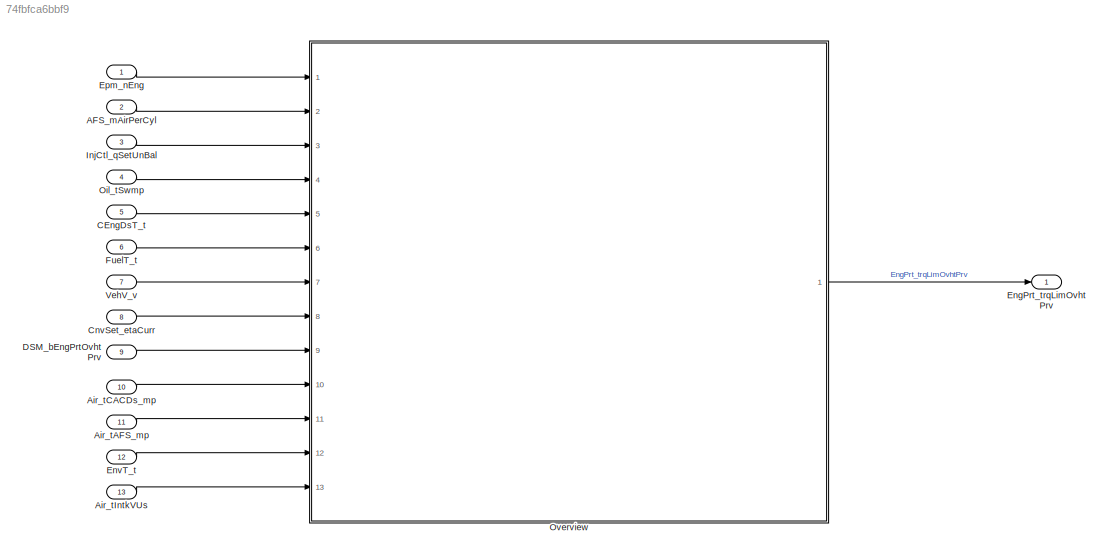
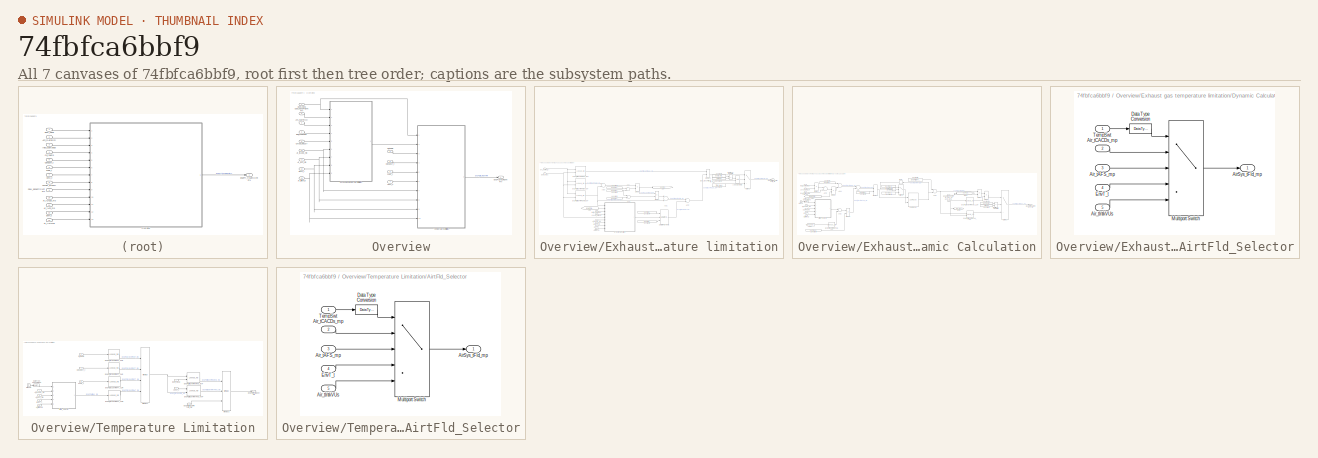
[diagram: thumbnail index - all 7 canvases of the model, root first then tree order]
MODEL slx_74fbfca6bbf9
KIND model
CONFIG AbsTol = auto
CONFIG EnableMultiTasking = off
CONFIG FixedStep = 0.001
CONFIG MaxStep = auto
CONFIG MinStep = auto
CONFIG RelTol = 1e-3
CONFIG SampleTimeConstraint = Unconstrained
CONFIG Solver = FixedStepDiscrete
CONFIG SolverName = FixedStepDiscrete
CONFIG StartTime = 0.0
CONFIG StopTime = Inf
BLOCK [Inport] AFS_mAirPerCyl
  Description = Air mass per cylinder
  IconDisplay = Port number
  OutDataTypeStr = Mass_mg
  OutMax = 16383
  OutMin = 0
  Port = 2
  PortDimensions = [1 1]
  Unit = mg/hub
BLOCK [Inport] Air_tAFS_mp
  Description = Induction air temperature at the HFM
  IconDisplay = Port number
  OutDataTypeStr = Temp_C
  OutMax = 200
  OutMin = -200
  Port = 11
  PortDimensions = [1 1]
  Unit = deg
BLOCK [Inport] Air_tCACDs_mp
  Description = Charge-air temperature downstream from charge-air cooler
  IconDisplay = Port number
  OutDataTypeStr = Temp_C
  OutMax = 200
  OutMin = -200
  Port = 10
  PortDimensions = [1 1]
  Unit = deg
BLOCK [Inport] Air_tIntkVUs
  Description = Intake air temperature upstream of the inlet valve
  IconDisplay = Port number
  OutDataTypeStr = Temp_C
  OutMax = 200
  OutMin = -200
  Port = 13
  PortDimensions = [1 1]
  Unit = deg
BLOCK [Inport] CEngDsT_t
  Description = engine coolant temperature after filter
  IconDisplay = Port number
  OutDataTypeStr = Temp_C
  OutMax = 200
  OutMin = -200
  Port = 5
  PortDimensions = [1 1]
  Unit = deg
BLOCK [Inport] CnvSet_etaCurr
  Description = Current conversion efficiency
  IconDisplay = Port number
  OutDataTypeStr = Effcy
  OutMax = 100
  OutMin = -100
  Port = 8
  PortDimensions = [1 1]
  Unit = Nm/(mg/hub)
BLOCK [Inport] DSM_bEngPrtOvhtPrv
  Description = Status of FId_EngPrtOvhtPrv
  IconDisplay = Port number
  OutDataTypeStr = boolean
  OutMax = 1
  OutMin = 0
  Port = 9
  PortDimensions = [1 1]
BLOCK [Outport] EngPrt_trqLimOvhtPrv
  IconDisplay = Port number
BLOCK [Inport] EnvT_t
  Description = Environmental temperature
  IconDisplay = Port number
  OutDataTypeStr = Temp_C
  OutMax = 200
  OutMin = -200
  Port = 12
  PortDimensions = [1 1]
  Unit = deg
BLOCK [Inport] Epm_nEng
  Description = Engine speed
  IconDisplay = Port number
  OutDataTypeStr = ERPM
  OutMax = 6000
  OutMin = 0
  PortDimensions = [1 1]
  Unit = rpm
BLOCK [Inport] FuelT_t
  Description = Temperature of fuel
  IconDisplay = Port number
  OutDataTypeStr = Temp_C
  OutMax = 150
  OutMin = -50
  Port = 6
  PortDimensions = [1 1]
  Unit = deg
BLOCK [Inport] InjCtl_qSetUnBal
  Description = Current injection quantity
  IconDisplay = Port number
  OutDataTypeStr = InjMass
  OutMax = 319
  OutMin = -319
  Port = 3
  PortDimensions = [1 1]
  Unit = mg/hub
BLOCK [Inport] Oil_tSwmp
  Description = Oil temperature in oil sump
  IconDisplay = Port number
  OutDataTypeStr = Temp_C
  OutMax = 200
  OutMin = -50
  Port = 4
  PortDimensions = [1 1]
  Unit = deg
BLOCK [SubSystem] Overview
  Ports = [13, 1]
  RequestExecContextInheritance = off
BLOCK [Inport] Overview/AFS_mAirPerCyl
  IconDisplay = Port number
  Port = 2
  Tag = mg/hub
BLOCK [Inport] Overview/Air_tAFS_mp
  IconDisplay = Port number
  Port = 11
  Tag = deg
BLOCK [Inport] Overview/Air_tCACDs_mp
  IconDisplay = Port number
  Port = 10
  Tag = deg
BLOCK [Inport] Overview/Air_tIntkVUs
  IconDisplay = Port number
  Port = 13
  Tag = deg
BLOCK [Inport] Overview/CEngDsT_t
  IconDisplay = Port number
  Port = 5
  Tag = deg
BLOCK [Inport] Overview/CnvSet_etaCurr
  IconDisplay = Port number
  Port = 8
  Tag = Nm/(mg/hub)
BLOCK [Inport] Overview/DSM_bEngPrtOvhtPrv
  IconDisplay = Port number
  Port = 9
BLOCK [Outport] Overview/EngPrt_trqLimOvhtPrv
  IconDisplay = Port number
  Tag = Nm
BLOCK [Inport] Overview/EnvT_t
  IconDisplay = Port number
  Port = 12
  Tag = deg
BLOCK [Inport] Overview/Epm_nEng
  IconDisplay = Port number
  Tag = rpm
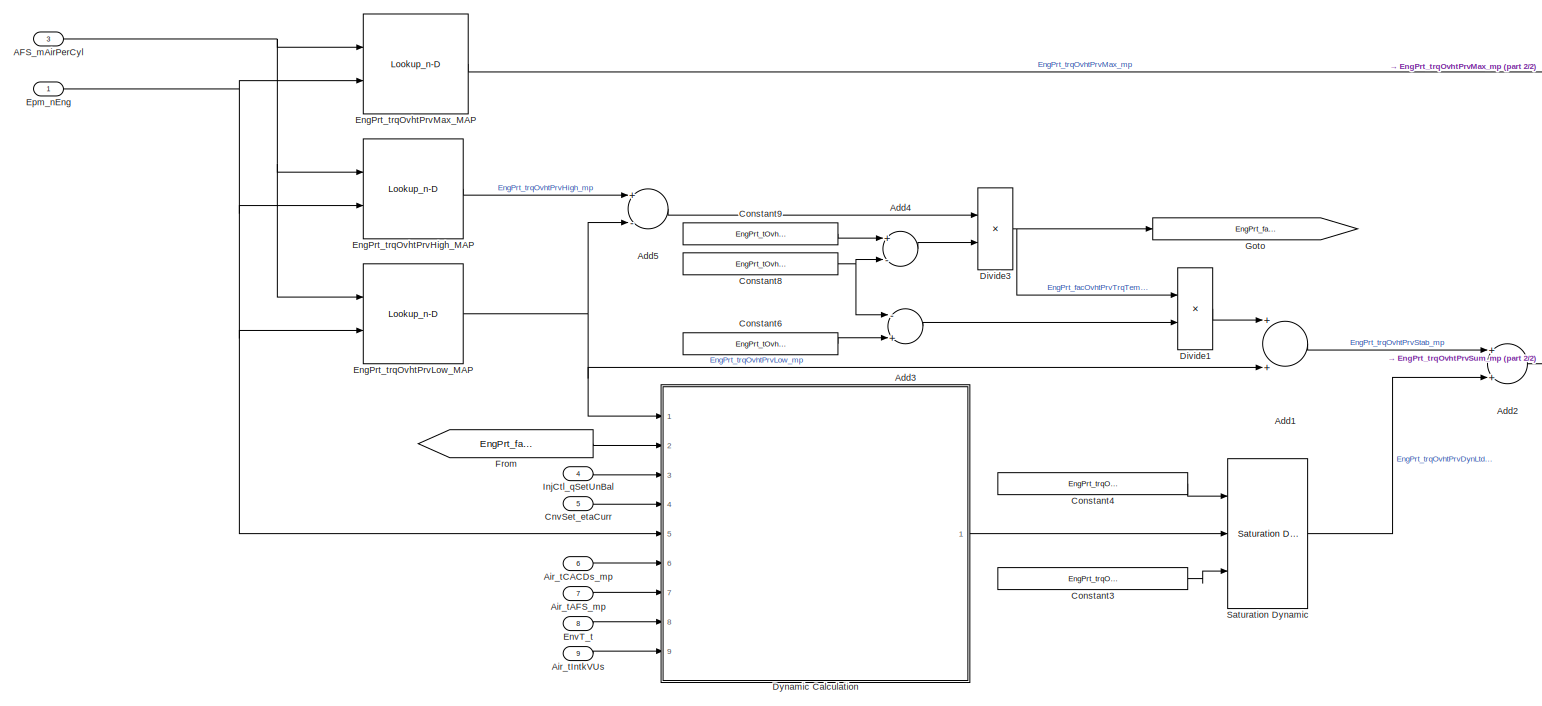
[diagram: Overview/Exhaust gas temperature limitation - part 1/2, left side, full height]
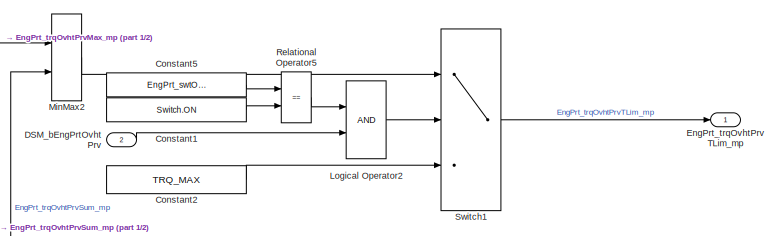
[diagram: Overview/Exhaust gas temperature limitation - part 2/2, top right region]
BLOCK [SubSystem] Overview/Exhaust gas temperature limitation
  Ports = [9, 1]
  RequestExecContextInheritance = off
BLOCK [Inport] Overview/Exhaust gas temperature limitation/AFS_mAirPerCyl
  IconDisplay = Port number
  Port = 3
  Tag = mg/hub
BLOCK [Sum] Overview/Exhaust gas temperature limitation/Add1
  OutDataTypeStr = Inherit: Inherit via internal rule
  Ports = [2, 1]
BLOCK [Sum] Overview/Exhaust gas temperature limitation/Add2
  OutDataTypeStr = Inherit: Inherit via internal rule
  Ports = [2, 1]
BLOCK [Sum] Overview/Exhaust gas temperature limitation/Add3
  Inputs = -+
  OutDataTypeStr = Inherit: Inherit via back propagation
  Ports = [2, 1]
  RndMeth = Round
BLOCK [Sum] Overview/Exhaust gas temperature limitation/Add4
  Inputs = +-
  OutDataTypeStr = Inherit: Inherit via back propagation
  Ports = [2, 1]
  RndMeth = Round
BLOCK [Sum] Overview/Exhaust gas temperature limitation/Add5
  Inputs = +-
  OutDataTypeStr = Inherit: Inherit via internal rule
  Ports = [2, 1]
BLOCK [Inport] Overview/Exhaust gas temperature limitation/Air_tAFS_mp
  IconDisplay = Port number
  Port = 7
  Tag = deg
BLOCK [Inport] Overview/Exhaust gas temperature limitation/Air_tCACDs_mp
  IconDisplay = Port number
  Port = 6
  Tag = deg
BLOCK [Inport] Overview/Exhaust gas temperature limitation/Air_tIntkVUs
  IconDisplay = Port number
  Port = 9
  Tag = deg
BLOCK [Inport] Overview/Exhaust gas temperature limitation/CnvSet_etaCurr
  IconDisplay = Port number
  Port = 5
  Tag = Nm/(mg/hub)
BLOCK [Constant] Overview/Exhaust gas temperature limitation/Constant1
  OutDataTypeStr = Inherit: Inherit via back propagation
  Value = Switch.ON
BLOCK [Constant] Overview/Exhaust gas temperature limitation/Constant2
  Value = TRQ_MAX
BLOCK [Constant] Overview/Exhaust gas temperature limitation/Constant3
  Value = EngPrt_trqOvhtPrvDynLimMin_C
BLOCK [Constant] Overview/Exhaust gas temperature limitation/Constant4
  Value = EngPrt_trqOvhtPrvDynLimMax_C
BLOCK [Constant] Overview/Exhaust gas temperature limitation/Constant5
  Value = EngPrt_swtOvhtPrvOn_C
BLOCK [Constant] Overview/Exhaust gas temperature limitation/Constant6
  Value = EngPrt_tOvhtPrvAllwMax_C
BLOCK [Constant] Overview/Exhaust gas temperature limitation/Constant8
  Value = EngPrt_tOvhtPrvLowMapRef_C
BLOCK [Constant] Overview/Exhaust gas temperature limitation/Constant9
  Value = EngPrt_tOvhtPrvHighMapRef_C
BLOCK [Inport] Overview/Exhaust gas temperature limitation/DSM_bEngPrtOvhtPrv
  IconDisplay = Port number
  Port = 2
BLOCK [Product] Overview/Exhaust gas temperature limitation/Divide1
  InputSameDT = off
  Inputs = **
  OutDataTypeStr = Inherit: Inherit via back propagation
  Ports = [2, 1]
  RndMeth = Floor
BLOCK [Product] Overview/Exhaust gas temperature limitation/Divide3
  InputSameDT = off
  Inputs = */
  OutDataTypeStr = Inherit: Inherit via back propagation
  Ports = [2, 1]
  RndMeth = Round
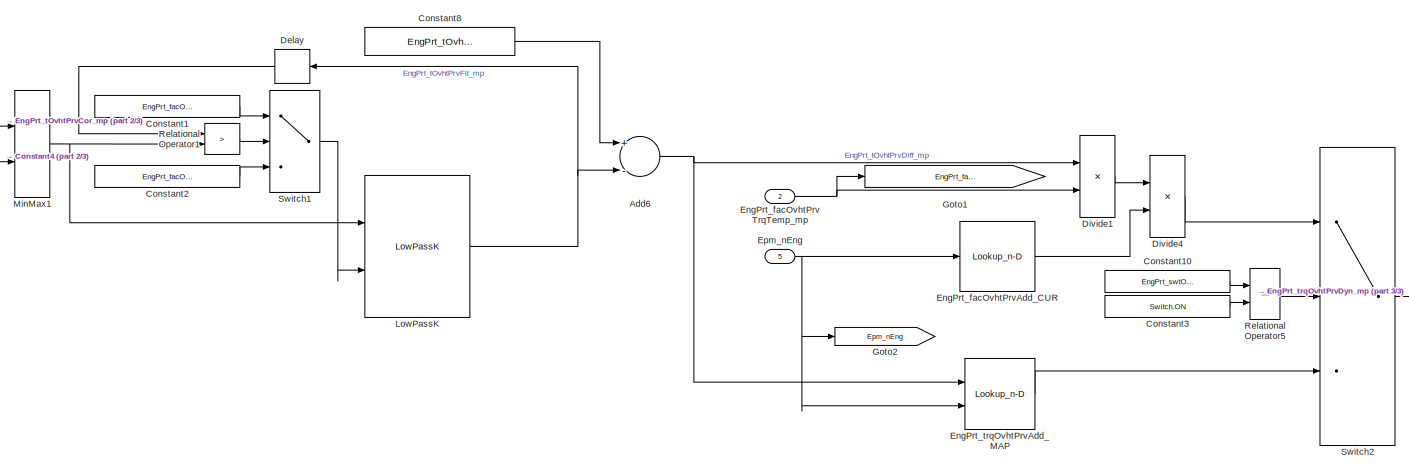
[diagram: Overview/Exhaust gas temperature limitation/Dynamic Calculation - part 1/3, center side, full height]
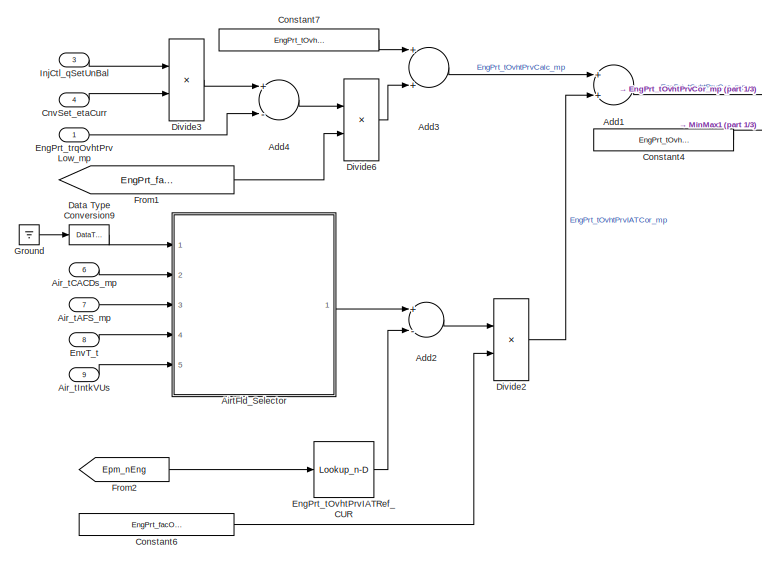
[diagram: Overview/Exhaust gas temperature limitation/Dynamic Calculation - part 2/3, left side, full height]
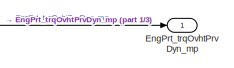
[diagram: Overview/Exhaust gas temperature limitation/Dynamic Calculation - part 3/3, middle right region]
BLOCK [SubSystem] Overview/Exhaust gas temperature limitation/Dynamic Calculation
  Ports = [9, 1]
  RequestExecContextInheritance = off
BLOCK [Sum] Overview/Exhaust gas temperature limitation/Dynamic Calculation/Add1
  OutDataTypeStr = Inherit: Inherit via back propagation
  Ports = [2, 1]
BLOCK [Sum] Overview/Exhaust gas temperature limitation/Dynamic Calculation/Add2
  Inputs = +-
  OutDataTypeStr = Inherit: Inherit via back propagation
  Ports = [2, 1]
  RndMeth = Round
BLOCK [Sum] Overview/Exhaust gas temperature limitation/Dynamic Calculation/Add3
  OutDataTypeStr = Inherit: Inherit via back propagation
  Ports = [2, 1]
BLOCK [Sum] Overview/Exhaust gas temperature limitation/Dynamic Calculation/Add4
  Inputs = +-
  OutDataTypeStr = Inherit: Inherit via internal rule
  Ports = [2, 1]
BLOCK [Sum] Overview/Exhaust gas temperature limitation/Dynamic Calculation/Add6
  Inputs = +-
  OutDataTypeStr = Inherit: Inherit via back propagation
  Ports = [2, 1]
BLOCK [Inport] Overview/Exhaust gas temperature limitation/Dynamic Calculation/Air_tAFS_mp
  IconDisplay = Port number
  Port = 7
  Tag = deg
BLOCK [Inport] Overview/Exhaust gas temperature limitation/Dynamic Calculation/Air_tCACDs_mp
  IconDisplay = Port number
  Port = 6
  Tag = deg
BLOCK [Inport] Overview/Exhaust gas temperature limitation/Dynamic Calculation/Air_tIntkVUs
  IconDisplay = Port number
  Port = 9
  Tag = deg
BLOCK [SubSystem] Overview/Exhaust gas temperature limitation/Dynamic Calculation/AirtFld_Selector
  Ports = [5, 1]
  RequestExecContextInheritance = off
BLOCK [Outport] Overview/Exhaust gas temperature limitation/Dynamic Calculation/AirtFld_Selector/AirSys_tFld_mp
  IconDisplay = Port number
  Tag = deg
BLOCK [Inport] Overview/Exhaust gas temperature limitation/Dynamic Calculation/AirtFld_Selector/Air_tAFS_mp
  IconDisplay = Port number
  Port = 3
  Tag = deg
BLOCK [Inport] Overview/Exhaust gas temperature limitation/Dynamic Calculation/AirtFld_Selector/Air_tCACDs_mp
  IconDisplay = Port number
  Port = 2
  Tag = deg
BLOCK [Inport] Overview/Exhaust gas temperature limitation/Dynamic Calculation/AirtFld_Selector/Air_tIntkVUs
  IconDisplay = Port number
  Port = 5
  Tag = deg
BLOCK [DataTypeConversion] Overview/Exhaust gas temperature limitation/Dynamic Calculation/AirtFld_Selector/Data Type Conversion
  OutDataTypeStr = uint8
  RndMeth = Floor
  SaturateOnIntegerOverflow = off
BLOCK [Inport] Overview/Exhaust gas temperature limitation/Dynamic Calculation/AirtFld_Selector/EnvT_t
  IconDisplay = Port number
  Port = 4
  Tag = deg
BLOCK [MultiPortSwitch] Overview/Exhaust gas temperature limitation/Dynamic Calculation/AirtFld_Selector/Multiport Switch
  DataPortOrder = Zero-based contiguous
  InputSameDT = off
  Inputs = 4
  Ports = [5, 1]
  SaturateOnIntegerOverflow = off
  zeroidx = on
BLOCK [Inport] Overview/Exhaust gas temperature limitation/Dynamic Calculation/AirtFld_Selector/TempSwt
  IconDisplay = Port number
BLOCK [Inport] Overview/Exhaust gas temperature limitation/Dynamic Calculation/CnvSet_etaCurr
  IconDisplay = Port number
  Port = 4
  Tag = Nm/(mg/hub)
BLOCK [Constant] Overview/Exhaust gas temperature limitation/Dynamic Calculation/Constant1
  Value = EngPrt_facOvhtPrvDown_C
BLOCK [Constant] Overview/Exhaust gas temperature limitation/Dynamic Calculation/Constant10
  Value = EngPrt_swtOvhtPrvDyn_C
BLOCK [Constant] Overview/Exhaust gas temperature limitation/Dynamic Calculation/Constant2
  Value = EngPrt_facOvhtPrvUp_C
BLOCK [Constant] Overview/Exhaust gas temperature limitation/Dynamic Calculation/Constant3
  OutDataTypeStr = Inherit: Inherit via back propagation
  Value = Switch.ON
BLOCK [Constant] Overview/Exhaust gas temperature limitation/Dynamic Calculation/Constant4
  Value = EngPrt_tOvhtPrvMinCalc_C
BLOCK [Constant] Overview/Exhaust gas temperature limitation/Dynamic Calculation/Constant6
  Value = EngPrt_facOvhtPrvIATCor_C
BLOCK [Constant] Overview/Exhaust gas temperature limitation/Dynamic Calculation/Constant7
  Value = EngPrt_tOvhtPrvLowMapRef_C
BLOCK [Constant] Overview/Exhaust gas temperature limitation/Dynamic Calculation/Constant8
  Value = EngPrt_tOvhtPrvAllwMax_C
BLOCK [DataTypeConversion] Overview/Exhaust gas temperature limitation/Dynamic Calculation/Data Type Conversion9
  OutDataTypeStr = uint8
  RndMeth = Floor
  SaturateOnIntegerOverflow = off
BLOCK [Delay] Overview/Exhaust gas temperature limitation/Dynamic Calculation/Delay
  DelayLength = 1
  InitialCondition = 0
  InputPortMap = u0
  Ports = [1, 1]
BLOCK [Product] Overview/Exhaust gas temperature limitation/Dynamic Calculation/Divide1
  InputSameDT = off
  Inputs = **
  Ports = [2, 1]
  RndMeth = Round
BLOCK [Product] Overview/Exhaust gas temperature limitation/Dynamic Calculation/Divide2
  InputSameDT = off
  Inputs = **
  Ports = [2, 1]
  RndMeth = Floor
BLOCK [Product] Overview/Exhaust gas temperature limitation/Dynamic Calculation/Divide3
  InputSameDT = off
  Inputs = **
  OutDataTypeStr = Inherit: Inherit via back propagation
  Ports = [2, 1]
  RndMeth = Floor
BLOCK [Product] Overview/Exhaust gas temperature limitation/Dynamic Calculation/Divide4
  InputSameDT = off
  Inputs = **
  OutDataTypeStr = Inherit: Inherit via back propagation
  Ports = [2, 1]
  RndMeth = Round
BLOCK [Product] Overview/Exhaust gas temperature limitation/Dynamic Calculation/Divide6
  InputSameDT = off
  Inputs = */
  OutDataTypeStr = Inherit: Inherit via back propagation
  Ports = [2, 1]
  RndMeth = Round
BLOCK [Lookup_n-D] Overview/Exhaust gas temperature limitation/Dynamic Calculation/EngPrt_facOvhtPrvAdd_CUR
  BreakpointsForDimension1 = EngPrt_facOvhtPrvAdd_CURX
  BreakpointsForDimension2 = EngPrt_qOvhtPrvAdd_MAPX
  ExtrapMethod = Clip
  IndexSearchMethod = Linear search
  InputSameDT = off
  InternalRulePriority = Speed
  NumberOfTableDimensions = 1
  OutDataTypeStr = Inherit: Inherit via back propagation
  Ports = [1, 1]
  RndMeth = Simplest
  SaturateOnIntegerOverflow = on
  Table = EngPrt_facOvhtPrvAdd_CUR
BLOCK [Inport] Overview/Exhaust gas temperature limitation/Dynamic Calculation/EngPrt_facOvhtPrvTrqTemp_mp
  IconDisplay = Port number
  Port = 2
BLOCK [Lookup_n-D] Overview/Exhaust gas temperature limitation/Dynamic Calculation/EngPrt_tOvhtPrvIATRef_CUR
  BreakpointsForDimension1 = EngPrt_tOvhtPrvIATRef_CURX
  BreakpointsForDimension2 = EngPrt_qOvhtPrvHigh_MAPY
  ExtrapMethod = Clip
  IndexSearchMethod = Linear search
  InputSameDT = off
  InternalRulePriority = Speed
  NumberOfTableDimensions = 1
  OutDataTypeStr = Inherit: Inherit via back propagation
  Ports = [1, 1]
  RndMeth = Simplest
  SaturateOnIntegerOverflow = on
  Table = EngPrt_tOvhtPrvIATRef_CUR
BLOCK [Lookup_n-D] Overview/Exhaust gas temperature limitation/Dynamic Calculation/EngPrt_trqOvhtPrvAdd_MAP
  BreakpointsForDimension1 = EngPrt_trqOvhtPrvAdd_MAPY
  BreakpointsForDimension2 = EngPrt_trqOvhtPrvAdd_MAPX
  ExtrapMethod = Clip
  IndexSearchMethod = Linear search
  InputSameDT = off
  InternalRulePriority = Speed
  OutDataTypeStr = Inherit: Inherit via back propagation
  Ports = [2, 1]
  RndMeth = Simplest
  SaturateOnIntegerOverflow = on
  Table = EngPrt_trqOvhtPrvAdd_MAP
BLOCK [Outport] Overview/Exhaust gas temperature limitation/Dynamic Calculation/EngPrt_trqOvhtPrvDyn_mp
  IconDisplay = Port number
BLOCK [Inport] Overview/Exhaust gas temperature limitation/Dynamic Calculation/EngPrt_trqOvhtPrvLow_mp
  IconDisplay = Port number
BLOCK [Inport] Overview/Exhaust gas temperature limitation/Dynamic Calculation/EnvT_t
  IconDisplay = Port number
  Port = 8
  Tag = deg
BLOCK [Inport] Overview/Exhaust gas temperature limitation/Dynamic Calculation/Epm_nEng
  IconDisplay = Port number
  Port = 5
  Tag = rpm
BLOCK [From] Overview/Exhaust gas temperature limitation/Dynamic Calculation/From1
  GotoTag = EngPrt_facOvhtPrvTrqTemp_mp
BLOCK [From] Overview/Exhaust gas temperature limitation/Dynamic Calculation/From2
  GotoTag = Epm_nEng
BLOCK [Goto] Overview/Exhaust gas temperature limitation/Dynamic Calculation/Goto1
  GotoTag = EngPrt_facOvhtPrvTrqTemp_mp
BLOCK [Goto] Overview/Exhaust gas temperature limitation/Dynamic Calculation/Goto2
  GotoTag = Epm_nEng
BLOCK [Ground] Overview/Exhaust gas temperature limitation/Dynamic Calculation/Ground
BLOCK [Inport] Overview/Exhaust gas temperature limitation/Dynamic Calculation/InjCtl_qSetUnBal
  IconDisplay = Port number
  Port = 3
  Tag = mg/hub
BLOCK [Reference] Overview/Exhaust gas temperature limitation/Dynamic Calculation/LowPassK  REF=sllib/LowPassK  (lib defined in slx_2b0aa6d284ff)
  Ports = [2, 1]
  SourceBlock = sllib/LowPassK
  SourceProductName = sllib
  SourceType = LowPassK
BLOCK [MinMax] Overview/Exhaust gas temperature limitation/Dynamic Calculation/MinMax1
  Function = max
  Inputs = 2
  Ports = [2, 1]
BLOCK [RelationalOperator] Overview/Exhaust gas temperature limitation/Dynamic Calculation/Relational Operator1
  Operator = >
  OutDataTypeStr = boolean
  Ports = [2, 1]
BLOCK [RelationalOperator] Overview/Exhaust gas temperature limitation/Dynamic Calculation/Relational Operator5
  Operator = ==
  OutDataTypeStr = boolean
  Ports = [2, 1]
  RndMeth = Simplest
BLOCK [Switch] Overview/Exhaust gas temperature limitation/Dynamic Calculation/Switch1
  Criteria = u2 ~= 0
BLOCK [Switch] Overview/Exhaust gas temperature limitation/Dynamic Calculation/Switch2
  Criteria = u2 ~= 0
BLOCK [Lookup_n-D] Overview/Exhaust gas temperature limitation/EngPrt_trqOvhtPrvHigh_MAP
  BreakpointsForDimension1 = EngPrt_trqOvhtPrvHigh_MAPY
  BreakpointsForDimension2 = EngPrt_trqOvhtPrvHigh_MAPX
  ExtrapMethod = Clip
  IndexSearchMethod = Linear search
  InputSameDT = off
  InternalRulePriority = Speed
  OutDataTypeStr = Inherit: Inherit via back propagation
  Ports = [2, 1]
  RndMeth = Simplest
  SaturateOnIntegerOverflow = on
  Table = EngPrt_trqOvhtPrvHigh_MAP
BLOCK [Lookup_n-D] Overview/Exhaust gas temperature limitation/EngPrt_trqOvhtPrvLow_MAP
  BreakpointsForDimension1 = EngPrt_trqOvhtPrvLow_MAPY
  BreakpointsForDimension2 = EngPrt_trqOvhtPrvLow_MAPX
  ExtrapMethod = Clip
  IndexSearchMethod = Linear search
  InputSameDT = off
  InternalRulePriority = Speed
  OutDataTypeStr = Inherit: Inherit via back propagation
  Ports = [2, 1]
  RndMeth = Simplest
  SaturateOnIntegerOverflow = on
  Table = EngPrt_trqOvhtPrvLow_MAP
BLOCK [Lookup_n-D] Overview/Exhaust gas temperature limitation/EngPrt_trqOvhtPrvMax_MAP
  BreakpointsForDimension1 = EngPrt_trqOvhtPrvMax_MAPY
  BreakpointsForDimension2 = EngPrt_trqOvhtPrvMax_MAPX
  ExtrapMethod = Clip
  IndexSearchMethod = Linear search
  InputSameDT = off
  InternalRulePriority = Speed
  OutDataTypeStr = Inherit: Inherit via back propagation
  Ports = [2, 1]
  RndMeth = Simplest
  SaturateOnIntegerOverflow = on
  Table = EngPrt_trqOvhtPrvMax_MAP
BLOCK [Outport] Overview/Exhaust gas temperature limitation/EngPrt_trqOvhtPrvTLim_mp
  IconDisplay = Port number
BLOCK [Inport] Overview/Exhaust gas temperature limitation/EnvT_t
  IconDisplay = Port number
  Port = 8
  Tag = deg
BLOCK [Inport] Overview/Exhaust gas temperature limitation/Epm_nEng
  IconDisplay = Port number
  Tag = rpm
BLOCK [From] Overview/Exhaust gas temperature limitation/From
  GotoTag = EngPrt_facOvhtPrvTrqTemp_mp
BLOCK [Goto] Overview/Exhaust gas temperature limitation/Goto
  GotoTag = EngPrt_facOvhtPrvTrqTemp_mp
BLOCK [Inport] Overview/Exhaust gas temperature limitation/InjCtl_qSetUnBal
  IconDisplay = Port number
  Port = 4
  Tag = mg/hub
BLOCK [Logic] Overview/Exhaust gas temperature limitation/Logical Operator2
  OutDataTypeStr = boolean
  Ports = [2, 1]
BLOCK [MinMax] Overview/Exhaust gas temperature limitation/MinMax2
  Inputs = 2
  Ports = [2, 1]
BLOCK [RelationalOperator] Overview/Exhaust gas temperature limitation/Relational Operator5
  Operator = ==
  OutDataTypeStr = boolean
  Ports = [2, 1]
  RndMeth = Simplest
BLOCK [Reference] Overview/Exhaust gas temperature limitation/Saturation Dynamic  REF=simulink/Discontinuities/Saturation
Dynamic
  Ports = [3, 1]
  SourceBlock = simulink/Discontinuities/Saturation\nDynamic
  SourceProductBaseCode = SL
  SourceProductName = Simulink
  SourceType = Saturation Dynamic
BLOCK [Switch] Overview/Exhaust gas temperature limitation/Switch1
  Criteria = u2 ~= 0
BLOCK [Inport] Overview/FuelT_t
  IconDisplay = Port number
  Port = 6
  Tag = deg
BLOCK [Inport] Overview/InjCtl_qSetUnBal
  IconDisplay = Port number
  Port = 3
  Tag = mg/hub
BLOCK [Inport] Overview/Oil_tSwmp
  IconDisplay = Port number
  Port = 4
  Tag = deg
BLOCK [SubSystem] Overview/Temperature Limitation
  Ports = [10, 1]
  RequestExecContextInheritance = off
BLOCK [Inport] Overview/Temperature Limitation/Air_tAFS_mp
  IconDisplay = Port number
  Port = 8
  Tag = deg
BLOCK [Inport] Overview/Temperature Limitation/Air_tCACDs_mp
  IconDisplay = Port number
  Port = 7
  Tag = deg
BLOCK [Inport] Overview/Temperature Limitation/Air_tIntkVUs
  IconDisplay = Port number
  Port = 10
  Tag = deg
BLOCK [SubSystem] Overview/Temperature Limitation/AirtFld_Selector
  Ports = [5, 1]
  RequestExecContextInheritance = off
BLOCK [Outport] Overview/Temperature Limitation/AirtFld_Selector/AirSys_tFld_mp
  IconDisplay = Port number
  Tag = deg
BLOCK [Inport] Overview/Temperature Limitation/AirtFld_Selector/Air_tAFS_mp
  IconDisplay = Port number
  Port = 3
  Tag = deg
BLOCK [Inport] Overview/Temperature Limitation/AirtFld_Selector/Air_tCACDs_mp
  IconDisplay = Port number
  Port = 2
  Tag = deg
BLOCK [Inport] Overview/Temperature Limitation/AirtFld_Selector/Air_tIntkVUs
  IconDisplay = Port number
  Port = 5
  Tag = deg
BLOCK [DataTypeConversion] Overview/Temperature Limitation/AirtFld_Selector/Data Type Conversion
  OutDataTypeStr = uint8
  RndMeth = Floor
  SaturateOnIntegerOverflow = off
BLOCK [Inport] Overview/Temperature Limitation/AirtFld_Selector/EnvT_t
  IconDisplay = Port number
  Port = 4
  Tag = deg
BLOCK [MultiPortSwitch] Overview/Temperature Limitation/AirtFld_Selector/Multiport Switch
  DataPortOrder = Zero-based contiguous
  InputSameDT = off
  Inputs = 4
  Ports = [5, 1]
  SaturateOnIntegerOverflow = off
  zeroidx = on
BLOCK [Inport] Overview/Temperature Limitation/AirtFld_Selector/TempSwt
  IconDisplay = Port number
BLOCK [Inport] Overview/Temperature Limitation/CEngDsT_t
  IconDisplay = Port number
  Port = 4
  Tag = deg
BLOCK [DataTypeConversion] Overview/Temperature Limitation/Data Type Conversion9
  OutDataTypeStr = uint8
  RndMeth = Floor
  SaturateOnIntegerOverflow = off
BLOCK [Lookup_n-D] Overview/Temperature Limitation/EngPrt_facOvhtPrvCT_CUR
  BreakpointsForDimension1 = EngPrt_facOvhtPrvCT_CURX
  BreakpointsForDimension1DataTypeStr = Inherit: Inherit from 'Breakpoint data'
  BreakpointsForDimension2 = EngPrt_qOvhtPrvMax_MAPY
  ExtrapMethod = Clip
  IndexSearchMethod = Linear search
  InputSameDT = off
  InternalRulePriority = Speed
  NumberOfTableDimensions = 1
  OutDataTypeStr = Inherit: Inherit from 'Table data'
  Ports = [1, 1]
  RndMeth = Simplest
  SaturateOnIntegerOverflow = on
  Table = EngPrt_facOvhtPrvCT_CUR
  TableDataTypeStr = Inherit: Inherit from 'Table data'
BLOCK [Lookup_n-D] Overview/Temperature Limitation/EngPrt_facOvhtPrvFT_CUR
  BreakpointsForDimension1 = EngPrt_facOvhtPrvFT_CURX
  BreakpointsForDimension1DataTypeStr = Inherit: Inherit from 'Breakpoint data'
  BreakpointsForDimension2 = EngPrt_qOvhtPrvMax_MAPY
  ExtrapMethod = Clip
  IndexSearchMethod = Linear search
  InputSameDT = off
  InternalRulePriority = Speed
  NumberOfTableDimensions = 1
  OutDataTypeStr = Inherit: Inherit via back propagation
  Ports = [1, 1]
  RndMeth = Simplest
  SaturateOnIntegerOverflow = on
  Table = EngPrt_facOvhtPrvFT_CUR
BLOCK [Lookup_n-D] Overview/Temperature Limitation/EngPrt_facOvhtPrvIAT_CUR
  BreakpointsForDimension1 = EngPrt_facOvhtPrvIAT_CURX
  BreakpointsForDimension2 = EngPrt_qOvhtPrvMax_MAPY
  ExtrapMethod = Clip
  IndexSearchMethod = Linear search
  InputSameDT = off
  InternalRulePriority = Speed
  NumberOfTableDimensions = 1
  OutDataTypeStr = Inherit: Inherit via back propagation
  Ports = [1, 1]
  RndMeth = Simplest
  SaturateOnIntegerOverflow = on
  Table = EngPrt_facOvhtPrvIAT_CUR
BLOCK [Lookup_n-D] Overview/Temperature Limitation/EngPrt_facOvhtPrvOT_CUR
  BreakpointsForDimension1 = EngPrt_facOvhtPrvOT_CURX
  BreakpointsForDimension1DataTypeStr = Inherit: Inherit from 'Breakpoint data'
  BreakpointsForDimension2 = EngPrt_qOvhtPrvMax_MAPY
  ExtrapMethod = Clip
  IndexSearchMethod = Linear search
  InputSameDT = off
  InternalRulePriority = Speed
  NumberOfTableDimensions = 1
  OutDataTypeStr = Inherit: Inherit via back propagation
  Ports = [1, 1]
  RndMeth = Simplest
  SaturateOnIntegerOverflow = on
  Table = EngPrt_facOvhtPrvOT_CUR
BLOCK [Outport] Overview/Temperature Limitation/EngPrt_trqLimOvhtPrv
  IconDisplay = Port number
  Tag = Nm
BLOCK [Lookup_n-D] Overview/Temperature Limitation/EngPrt_trqOvhtPrvNRng_MAP
  BreakpointsForDimension1 = EngPrt_trqOvhtPrvNRng_MAPY
  BreakpointsForDimension1DataTypeStr = Inherit: Inherit from 'Breakpoint data'
  BreakpointsForDimension2 = EngPrt_trqOvhtPrvNRng_MAPX
  BreakpointsForDimension2DataTypeStr = Inherit: Inherit from 'Breakpoint data'
  ExtrapMethod = Clip
  IndexSearchMethod = Linear search
  InputSameDT = off
  InternalRulePriority = Speed
  OutDataTypeStr = Inherit: Inherit from 'Table data'
  Ports = [2, 1]
  RndMeth = Simplest
  SaturateOnIntegerOverflow = on
  Table = EngPrt_trqOvhtPrvNRng_MAP
  TableDataTypeStr = Inherit: Inherit from 'Table data'
BLOCK [Inport] Overview/Temperature Limitation/EngPrt_trqOvhtPrvTLim_mp
  IconDisplay = Port number
  Port = 2
BLOCK [Lookup_n-D] Overview/Temperature Limitation/EngPrt_trqOvhtPrvVRng_MAP
  BreakpointsForDimension1 = EngPrt_trqOvhtPrvVRng_MAPY
  BreakpointsForDimension2 = EngPrt_trqOvhtPrvVRng_MAPX
  ExtrapMethod = Clip
  IndexSearchMethod = Linear search
  InputSameDT = off
  InternalRulePriority = Speed
  OutDataTypeStr = Inherit: Inherit via back propagation
  Ports = [2, 1]
  RndMeth = Simplest
  SaturateOnIntegerOverflow = on
  Table = EngPrt_trqOvhtPrvVRng_MAP
BLOCK [Inport] Overview/Temperature Limitation/EnvT_t
  IconDisplay = Port number
  Port = 9
  Tag = deg
BLOCK [Inport] Overview/Temperature Limitation/Epm_nEng
  IconDisplay = Port number
  Tag = rpm
BLOCK [Inport] Overview/Temperature Limitation/FuelT_t
  IconDisplay = Port number
  Port = 5
  Tag = deg
BLOCK [Ground] Overview/Temperature Limitation/Ground
BLOCK [MinMax] Overview/Temperature Limitation/MinMax1
  Inputs = 4
  Ports = [4, 1]
BLOCK [MinMax] Overview/Temperature Limitation/MinMax3
  Inputs = 3
  Ports = [3, 1]
BLOCK [Inport] Overview/Temperature Limitation/Oil_tSwmp
  IconDisplay = Port number
  Port = 3
  Tag = deg
BLOCK [Inport] Overview/Temperature Limitation/VehV_v
  IconDisplay = Port number
  Port = 6
  Tag = km/h
BLOCK [Inport] Overview/VehV_v
  IconDisplay = Port number
  Port = 7
  Tag = km/h
BLOCK [Inport] VehV_v
  Description = Vehicle speed
  IconDisplay = Port number
  OutDataTypeStr = V_kmph
  OutMax = 250
  OutMin = 0
  Port = 7
  PortDimensions = [1 1]
  Unit = km/h
LINE AFS_mAirPerCyl:1 -> Overview:2
LINE Air_tAFS_mp:1 -> Overview:11
LINE Air_tCACDs_mp:1 -> Overview:10
LINE Air_tIntkVUs:1 -> Overview:13
LINE CEngDsT_t:1 -> Overview:5
LINE CnvSet_etaCurr:1 -> Overview:8
LINE DSM_bEngPrtOvhtPrv:1 -> Overview:9
LINE EnvT_t:1 -> Overview:12
LINE Epm_nEng:1 -> Overview:1
LINE FuelT_t:1 -> Overview:6
LINE InjCtl_qSetUnBal:1 -> Overview:3
LINE Oil_tSwmp:1 -> Overview:4
LINE Overview/AFS_mAirPerCyl:1 -> Overview/Exhaust gas temperature limitation:3
NET Overview/Air_tAFS_mp:1 -> Overview/Exhaust gas temperature limitation:7, Overview/Temperature Limitation:8
NET Overview/Air_tCACDs_mp:1 -> Overview/Exhaust gas temperature limitation:6, Overview/Temperature Limitation:7
NET Overview/Air_tIntkVUs:1 -> Overview/Exhaust gas temperature limitation:9, Overview/Temperature Limitation:10
LINE Overview/CEngDsT_t:1 -> Overview/Temperature Limitation:4
LINE Overview/CnvSet_etaCurr:1 -> Overview/Exhaust gas temperature limitation:5
LINE Overview/DSM_bEngPrtOvhtPrv:1 -> Overview/Exhaust gas temperature limitation:2
NET Overview/EnvT_t:1 -> Overview/Exhaust gas temperature limitation:8, Overview/Temperature Limitation:9
NET Overview/Epm_nEng:1 -> Overview/Exhaust gas temperature limitation:1, Overview/Temperature Limitation:1
NET Overview/Exhaust gas temperature limitation/AFS_mAirPerCyl:1 -> Overview/Exhaust gas temperature limitation/EngPrt_trqOvhtPrvHigh_MAP:1, Overview/Exhaust gas temperature limitation/EngPrt_trqOvhtPrvLow_MAP:1, Overview/Exhaust gas temperature limitation/EngPrt_trqOvhtPrvMax_MAP:1
LINE Overview/Exhaust gas temperature limitation/Add1:1 -> Overview/Exhaust gas temperature limitation/Add2:1
LINE Overview/Exhaust gas temperature limitation/Add2:1 -> Overview/Exhaust gas temperature limitation/MinMax2:2
LINE Overview/Exhaust gas temperature limitation/Add3:1 -> Overview/Exhaust gas temperature limitation/Divide1:2
LINE Overview/Exhaust gas temperature limitation/Add4:1 -> Overview/Exhaust gas temperature limitation/Divide3:2
LINE Overview/Exhaust gas temperature limitation/Add5:1 -> Overview/Exhaust gas temperature limitation/Divide3:1
LINE Overview/Exhaust gas temperature limitation/Air_tAFS_mp:1 -> Overview/Exhaust gas temperature limitation/Dynamic Calculation:7
LINE Overview/Exhaust gas temperature limitation/Air_tCACDs_mp:1 -> Overview/Exhaust gas temperature limitation/Dynamic Calculation:6
LINE Overview/Exhaust gas temperature limitation/Air_tIntkVUs:1 -> Overview/Exhaust gas temperature limitation/Dynamic Calculation:9
LINE Overview/Exhaust gas temperature limitation/CnvSet_etaCurr:1 -> Overview/Exhaust gas temperature limitation/Dynamic Calculation:4
LINE Overview/Exhaust gas temperature limitation/Constant1:1 -> Overview/Exhaust gas temperature limitation/Relational Operator5:2
LINE Overview/Exhaust gas temperature limitation/Constant2:1 -> Overview/Exhaust gas temperature limitation/Switch1:3
LINE Overview/Exhaust gas temperature limitation/Constant3:1 -> Overview/Exhaust gas temperature limitation/Saturation Dynamic:3
LINE Overview/Exhaust gas temperature limitation/Constant4:1 -> Overview/Exhaust gas temperature limitation/Saturation Dynamic:1
LINE Overview/Exhaust gas temperature limitation/Constant5:1 -> Overview/Exhaust gas temperature limitation/Relational Operator5:1
LINE Overview/Exhaust gas temperature limitation/Constant6:1 -> Overview/Exhaust gas temperature limitation/Add3:2
NET Overview/Exhaust gas temperature limitation/Constant8:1 -> Overview/Exhaust gas temperature limitation/Add3:1, Overview/Exhaust gas temperature limitation/Add4:2
LINE Overview/Exhaust gas temperature limitation/Constant9:1 -> Overview/Exhaust gas temperature limitation/Add4:1
LINE Overview/Exhaust gas temperature limitation/DSM_bEngPrtOvhtPrv:1 -> Overview/Exhaust gas temperature limitation/Logical Operator2:2
LINE Overview/Exhaust gas temperature limitation/Divide1:1 -> Overview/Exhaust gas temperature limitation/Add1:1
NET Overview/Exhaust gas temperature limitation/Divide3:1 -> Overview/Exhaust gas temperature limitation/Divide1:1, Overview/Exhaust gas temperature limitation/Goto:1
LINE Overview/Exhaust gas temperature limitation/Dynamic Calculation/Add1:1 -> Overview/Exhaust gas temperature limitation/Dynamic Calculation/MinMax1:1
LINE Overview/Exhaust gas temperature limitation/Dynamic Calculation/Add2:1 -> Overview/Exhaust gas temperature limitation/Dynamic Calculation/Divide2:1
LINE Overview/Exhaust gas temperature limitation/Dynamic Calculation/Add3:1 -> Overview/Exhaust gas temperature limitation/Dynamic Calculation/Add1:1
LINE Overview/Exhaust gas temperature limitation/Dynamic Calculation/Add4:1 -> Overview/Exhaust gas temperature limitation/Dynamic Calculation/Divide6:1
NET Overview/Exhaust gas temperature limitation/Dynamic Calculation/Add6:1 -> Overview/Exhaust gas temperature limitation/Dynamic Calculation/Divide1:1, Overview/Exhaust gas temperature limitation/Dynamic Calculation/EngPrt_trqOvhtPrvAdd_MAP:1
LINE Overview/Exhaust gas temperature limitation/Dynamic Calculation/Air_tAFS_mp:1 -> Overview/Exhaust gas temperature limitation/Dynamic Calculation/AirtFld_Selector:3
LINE Overview/Exhaust gas temperature limitation/Dynamic Calculation/Air_tCACDs_mp:1 -> Overview/Exhaust gas temperature limitation/Dynamic Calculation/AirtFld_Selector:2
LINE Overview/Exhaust gas temperature limitation/Dynamic Calculation/Air_tIntkVUs:1 -> Overview/Exhaust gas temperature limitation/Dynamic Calculation/AirtFld_Selector:5
LINE Overview/Exhaust gas temperature limitation/Dynamic Calculation/AirtFld_Selector/Air_tAFS_mp:1 -> Overview/Exhaust gas temperature limitation/Dynamic Calculation/AirtFld_Selector/Multiport Switch:3
LINE Overview/Exhaust gas temperature limitation/Dynamic Calculation/AirtFld_Selector/Air_tCACDs_mp:1 -> Overview/Exhaust gas temperature limitation/Dynamic Calculation/AirtFld_Selector/Multiport Switch:2
LINE Overview/Exhaust gas temperature limitation/Dynamic Calculation/AirtFld_Selector/Air_tIntkVUs:1 -> Overview/Exhaust gas temperature limitation/Dynamic Calculation/AirtFld_Selector/Multiport Switch:5
LINE Overview/Exhaust gas temperature limitation/Dynamic Calculation/AirtFld_Selector/Data Type Conversion:1 -> Overview/Exhaust gas temperature limitation/Dynamic Calculation/AirtFld_Selector/Multiport Switch:1
LINE Overview/Exhaust gas temperature limitation/Dynamic Calculation/AirtFld_Selector/EnvT_t:1 -> Overview/Exhaust gas temperature limitation/Dynamic Calculation/AirtFld_Selector/Multiport Switch:4
LINE Overview/Exhaust gas temperature limitation/Dynamic Calculation/AirtFld_Selector/Multiport Switch:1 -> Overview/Exhaust gas temperature limitation/Dynamic Calculation/AirtFld_Selector/AirSys_tFld_mp:1
LINE Overview/Exhaust gas temperature limitation/Dynamic Calculation/AirtFld_Selector/TempSwt:1 -> Overview/Exhaust gas temperature limitation/Dynamic Calculation/AirtFld_Selector/Data Type Conversion:1
LINE Overview/Exhaust gas temperature limitation/Dynamic Calculation/AirtFld_Selector:1 -> Overview/Exhaust gas temperature limitation/Dynamic Calculation/Add2:1
LINE Overview/Exhaust gas temperature limitation/Dynamic Calculation/CnvSet_etaCurr:1 -> Overview/Exhaust gas temperature limitation/Dynamic Calculation/Divide3:2
LINE Overview/Exhaust gas temperature limitation/Dynamic Calculation/Constant10:1 -> Overview/Exhaust gas temperature limitation/Dynamic Calculation/Relational Operator5:1
LINE Overview/Exhaust gas temperature limitation/Dynamic Calculation/Constant1:1 -> Overview/Exhaust gas temperature limitation/Dynamic Calculation/Switch1:1
LINE Overview/Exhaust gas temperature limitation/Dynamic Calculation/Constant2:1 -> Overview/Exhaust gas temperature limitation/Dynamic Calculation/Switch1:3
LINE Overview/Exhaust gas temperature limitation/Dynamic Calculation/Constant3:1 -> Overview/Exhaust gas temperature limitation/Dynamic Calculation/Relational Operator5:2
LINE Overview/Exhaust gas temperature limitation/Dynamic Calculation/Constant4:1 -> Overview/Exhaust gas temperature limitation/Dynamic Calculation/MinMax1:2
LINE Overview/Exhaust gas temperature limitation/Dynamic Calculation/Constant6:1 -> Overview/Exhaust gas temperature limitation/Dynamic Calculation/Divide2:2
LINE Overview/Exhaust gas temperature limitation/Dynamic Calculation/Constant7:1 -> Overview/Exhaust gas temperature limitation/Dynamic Calculation/Add3:1
LINE Overview/Exhaust gas temperature limitation/Dynamic Calculation/Constant8:1 -> Overview/Exhaust gas temperature limitation/Dynamic Calculation/Add6:1
LINE Overview/Exhaust gas temperature limitation/Dynamic Calculation/Data Type Conversion9:1 -> Overview/Exhaust gas temperature limitation/Dynamic Calculation/AirtFld_Selector:1
LINE Overview/Exhaust gas temperature limitation/Dynamic Calculation/Delay:1 -> Overview/Exhaust gas temperature limitation/Dynamic Calculation/Relational Operator1:1
LINE Overview/Exhaust gas temperature limitation/Dynamic Calculation/Divide1:1 -> Overview/Exhaust gas temperature limitation/Dynamic Calculation/Divide4:1
LINE Overview/Exhaust gas temperature limitation/Dynamic Calculation/Divide2:1 -> Overview/Exhaust gas temperature limitation/Dynamic Calculation/Add1:2
LINE Overview/Exhaust gas temperature limitation/Dynamic Calculation/Divide3:1 -> Overview/Exhaust gas temperature limitation/Dynamic Calculation/Add4:1
LINE Overview/Exhaust gas temperature limitation/Dynamic Calculation/Divide4:1 -> Overview/Exhaust gas temperature limitation/Dynamic Calculation/Switch2:1
LINE Overview/Exhaust gas temperature limitation/Dynamic Calculation/Divide6:1 -> Overview/Exhaust gas temperature limitation/Dynamic Calculation/Add3:2
LINE Overview/Exhaust gas temperature limitation/Dynamic Calculation/EngPrt_facOvhtPrvAdd_CUR:1 -> Overview/Exhaust gas temperature limitation/Dynamic Calculation/Divide4:2
NET Overview/Exhaust gas temperature limitation/Dynamic Calculation/EngPrt_facOvhtPrvTrqTemp_mp:1 -> Overview/Exhaust gas temperature limitation/Dynamic Calculation/Divide1:2, Overview/Exhaust gas temperature limitation/Dynamic Calculation/Goto1:1
LINE Overview/Exhaust gas temperature limitation/Dynamic Calculation/EngPrt_tOvhtPrvIATRef_CUR:1 -> Overview/Exhaust gas temperature limitation/Dynamic Calculation/Add2:2
LINE Overview/Exhaust gas temperature limitation/Dynamic Calculation/EngPrt_trqOvhtPrvAdd_MAP:1 -> Overview/Exhaust gas temperature limitation/Dynamic Calculation/Switch2:3
LINE Overview/Exhaust gas temperature limitation/Dynamic Calculation/EngPrt_trqOvhtPrvLow_mp:1 -> Overview/Exhaust gas temperature limitation/Dynamic Calculation/Add4:2
LINE Overview/Exhaust gas temperature limitation/Dynamic Calculation/EnvT_t:1 -> Overview/Exhaust gas temperature limitation/Dynamic Calculation/AirtFld_Selector:4
NET Overview/Exhaust gas temperature limitation/Dynamic Calculation/Epm_nEng:1 -> Overview/Exhaust gas temperature limitation/Dynamic Calculation/EngPrt_facOvhtPrvAdd_CUR:1, Overview/Exhaust gas temperature limitation/Dynamic Calculation/EngPrt_trqOvhtPrvAdd_MAP:2, Overview/Exhaust gas temperature limitation/Dynamic Calculation/Goto2:1
LINE Overview/Exhaust gas temperature limitation/Dynamic Calculation/From1:1 -> Overview/Exhaust gas temperature limitation/Dynamic Calculation/Divide6:2
LINE Overview/Exhaust gas temperature limitation/Dynamic Calculation/From2:1 -> Overview/Exhaust gas temperature limitation/Dynamic Calculation/EngPrt_tOvhtPrvIATRef_CUR:1
LINE Overview/Exhaust gas temperature limitation/Dynamic Calculation/Ground:1 -> Overview/Exhaust gas temperature limitation/Dynamic Calculation/Data Type Conversion9:1
LINE Overview/Exhaust gas temperature limitation/Dynamic Calculation/InjCtl_qSetUnBal:1 -> Overview/Exhaust gas temperature limitation/Dynamic Calculation/Divide3:1
NET Overview/Exhaust gas temperature limitation/Dynamic Calculation/LowPassK:1 -> Overview/Exhaust gas temperature limitation/Dynamic Calculation/Add6:2, Overview/Exhaust gas temperature limitation/Dynamic Calculation/Delay:1
NET Overview/Exhaust gas temperature limitation/Dynamic Calculation/MinMax1:1 -> Overview/Exhaust gas temperature limitation/Dynamic Calculation/LowPassK:1, Overview/Exhaust gas temperature limitation/Dynamic Calculation/Relational Operator1:2
LINE Overview/Exhaust gas temperature limitation/Dynamic Calculation/Relational Operator1:1 -> Overview/Exhaust gas temperature limitation/Dynamic Calculation/Switch1:2
LINE Overview/Exhaust gas temperature limitation/Dynamic Calculation/Relational Operator5:1 -> Overview/Exhaust gas temperature limitation/Dynamic Calculation/Switch2:2
LINE Overview/Exhaust gas temperature limitation/Dynamic Calculation/Switch1:1 -> Overview/Exhaust gas temperature limitation/Dynamic Calculation/LowPassK:2
LINE Overview/Exhaust gas temperature limitation/Dynamic Calculation/Switch2:1 -> Overview/Exhaust gas temperature limitation/Dynamic Calculation/EngPrt_trqOvhtPrvDyn_mp:1
LINE Overview/Exhaust gas temperature limitation/Dynamic Calculation:1 -> Overview/Exhaust gas temperature limitation/Saturation Dynamic:2
LINE Overview/Exhaust gas temperature limitation/EngPrt_trqOvhtPrvHigh_MAP:1 -> Overview/Exhaust gas temperature limitation/Add5:1
NET Overview/Exhaust gas temperature limitation/EngPrt_trqOvhtPrvLow_MAP:1 -> Overview/Exhaust gas temperature limitation/Add1:2, Overview/Exhaust gas temperature limitation/Add5:2, Overview/Exhaust gas temperature limitation/Dynamic Calculation:1
LINE Overview/Exhaust gas temperature limitation/EngPrt_trqOvhtPrvMax_MAP:1 -> Overview/Exhaust gas temperature limitation/MinMax2:1
LINE Overview/Exhaust gas temperature limitation/EnvT_t:1 -> Overview/Exhaust gas temperature limitation/Dynamic Calculation:8
NET Overview/Exhaust gas temperature limitation/Epm_nEng:1 -> Overview/Exhaust gas temperature limitation/Dynamic Calculation:5, Overview/Exhaust gas temperature limitation/EngPrt_trqOvhtPrvHigh_MAP:2, Overview/Exhaust gas temperature limitation/EngPrt_trqOvhtPrvLow_MAP:2, Overview/Exhaust gas temperature limitation/EngPrt_trqOvhtPrvMax_MAP:2
LINE Overview/Exhaust gas temperature limitation/From:1 -> Overview/Exhaust gas temperature limitation/Dynamic Calculation:2
LINE Overview/Exhaust gas temperature limitation/InjCtl_qSetUnBal:1 -> Overview/Exhaust gas temperature limitation/Dynamic Calculation:3
LINE Overview/Exhaust gas temperature limitation/Logical Operator2:1 -> Overview/Exhaust gas temperature limitation/Switch1:2
LINE Overview/Exhaust gas temperature limitation/MinMax2:1 -> Overview/Exhaust gas temperature limitation/Switch1:1
LINE Overview/Exhaust gas temperature limitation/Relational Operator5:1 -> Overview/Exhaust gas temperature limitation/Logical Operator2:1
LINE Overview/Exhaust gas temperature limitation/Saturation Dynamic:1 -> Overview/Exhaust gas temperature limitation/Add2:2
LINE Overview/Exhaust gas temperature limitation/Switch1:1 -> Overview/Exhaust gas temperature limitation/EngPrt_trqOvhtPrvTLim_mp:1
LINE Overview/Exhaust gas temperature limitation:1 -> Overview/Temperature Limitation:2
LINE Overview/FuelT_t:1 -> Overview/Temperature Limitation:5
LINE Overview/InjCtl_qSetUnBal:1 -> Overview/Exhaust gas temperature limitation:4
LINE Overview/Oil_tSwmp:1 -> Overview/Temperature Limitation:3
LINE Overview/Temperature Limitation/Air_tAFS_mp:1 -> Overview/Temperature Limitation/AirtFld_Selector:3
LINE Overview/Temperature Limitation/Air_tCACDs_mp:1 -> Overview/Temperature Limitation/AirtFld_Selector:2
LINE Overview/Temperature Limitation/Air_tIntkVUs:1 -> Overview/Temperature Limitation/AirtFld_Selector:5
LINE Overview/Temperature Limitation/AirtFld_Selector/Air_tAFS_mp:1 -> Overview/Temperature Limitation/AirtFld_Selector/Multiport Switch:3
LINE Overview/Temperature Limitation/AirtFld_Selector/Air_tCACDs_mp:1 -> Overview/Temperature Limitation/AirtFld_Selector/Multiport Switch:2
LINE Overview/Temperature Limitation/AirtFld_Selector/Air_tIntkVUs:1 -> Overview/Temperature Limitation/AirtFld_Selector/Multiport Switch:5
LINE Overview/Temperature Limitation/AirtFld_Selector/Data Type Conversion:1 -> Overview/Temperature Limitation/AirtFld_Selector/Multiport Switch:1
LINE Overview/Temperature Limitation/AirtFld_Selector/EnvT_t:1 -> Overview/Temperature Limitation/AirtFld_Selector/Multiport Switch:4
LINE Overview/Temperature Limitation/AirtFld_Selector/Multiport Switch:1 -> Overview/Temperature Limitation/AirtFld_Selector/AirSys_tFld_mp:1
LINE Overview/Temperature Limitation/AirtFld_Selector/TempSwt:1 -> Overview/Temperature Limitation/AirtFld_Selector/Data Type Conversion:1
LINE Overview/Temperature Limitation/AirtFld_Selector:1 -> Overview/Temperature Limitation/EngPrt_facOvhtPrvIAT_CUR:1
LINE Overview/Temperature Limitation/CEngDsT_t:1 -> Overview/Temperature Limitation/EngPrt_facOvhtPrvCT_CUR:1
LINE Overview/Temperature Limitation/Data Type Conversion9:1 -> Overview/Temperature Limitation/AirtFld_Selector:1
LINE Overview/Temperature Limitation/EngPrt_facOvhtPrvCT_CUR:1 -> Overview/Temperature Limitation/MinMax1:2
LINE Overview/Temperature Limitation/EngPrt_facOvhtPrvFT_CUR:1 -> Overview/Temperature Limitation/MinMax1:3
LINE Overview/Temperature Limitation/EngPrt_facOvhtPrvIAT_CUR:1 -> Overview/Temperature Limitation/MinMax1:4
LINE Overview/Temperature Limitation/EngPrt_facOvhtPrvOT_CUR:1 -> Overview/Temperature Limitation/MinMax1:1
LINE Overview/Temperature Limitation/EngPrt_trqOvhtPrvNRng_MAP:1 -> Overview/Temperature Limitation/MinMax3:1
LINE Overview/Temperature Limitation/EngPrt_trqOvhtPrvTLim_mp:1 -> Overview/Temperature Limitation/MinMax3:3
LINE Overview/Temperature Limitation/EngPrt_trqOvhtPrvVRng_MAP:1 -> Overview/Temperature Limitation/MinMax3:2
LINE Overview/Temperature Limitation/EnvT_t:1 -> Overview/Temperature Limitation/AirtFld_Selector:4
LINE Overview/Temperature Limitation/Epm_nEng:1 -> Overview/Temperature Limitation/EngPrt_trqOvhtPrvNRng_MAP:2
LINE Overview/Temperature Limitation/FuelT_t:1 -> Overview/Temperature Limitation/EngPrt_facOvhtPrvFT_CUR:1
LINE Overview/Temperature Limitation/Ground:1 -> Overview/Temperature Limitation/Data Type Conversion9:1
NET Overview/Temperature Limitation/MinMax1:1 -> Overview/Temperature Limitation/EngPrt_trqOvhtPrvNRng_MAP:1, Overview/Temperature Limitation/EngPrt_trqOvhtPrvVRng_MAP:2
LINE Overview/Temperature Limitation/MinMax3:1 -> Overview/Temperature Limitation/EngPrt_trqLimOvhtPrv:1
LINE Overview/Temperature Limitation/Oil_tSwmp:1 -> Overview/Temperature Limitation/EngPrt_facOvhtPrvOT_CUR:1
LINE Overview/Temperature Limitation/VehV_v:1 -> Overview/Temperature Limitation/EngPrt_trqOvhtPrvVRng_MAP:1
LINE Overview/Temperature Limitation:1 -> Overview/EngPrt_trqLimOvhtPrv:1
LINE Overview/VehV_v:1 -> Overview/Temperature Limitation:6
LINE Overview:1 -> EngPrt_trqLimOvhtPrv:1
LINE VehV_v:1 -> Overview:7
note: NET lines group one-source signal fan-out (src -> all destinations, sorted); 1:1 wires keep LINE
